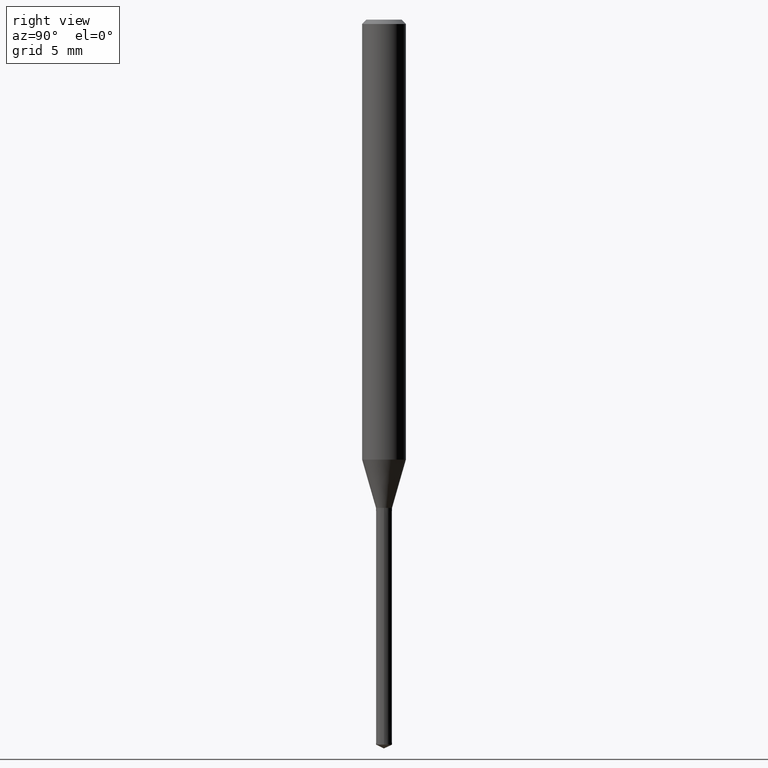
[diagram: clean part render]
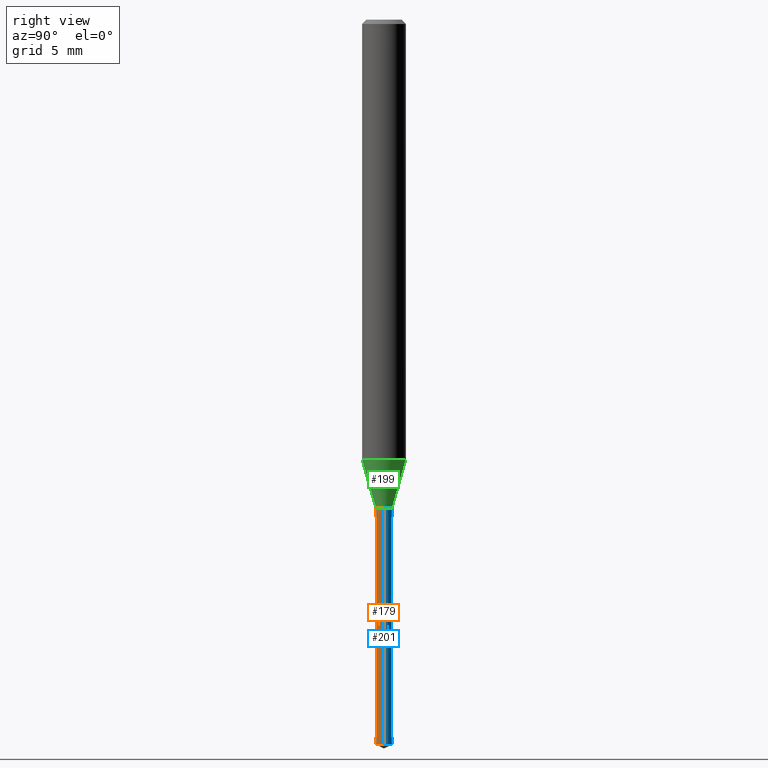
[diagram: same view with three faces highlighted in distinct colors, each labeled with its STEP entity id]
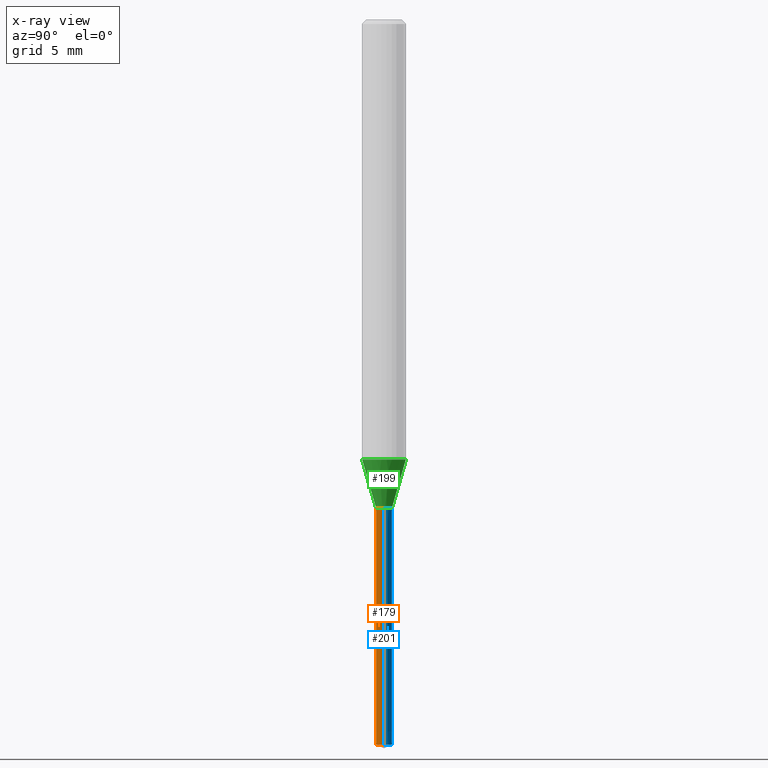
[diagram: x-ray of the same camera — body ghosted, the three highlighted faces saturated]
A machine part, right view with three faces highlighted in distinct colors.
The next image is the same camera in x-ray (body ghosted, the three faces saturated) — at least one of them is partly hidden behind the body in this view.
Their STEP definitions:

[orange] entity #179 — the highlighted conical surface has half-angle 0.004 deg.
#99=VERTEX_POINT('',#234);
#115=EDGE_CURVE('',#205,#131,#253,.T.);
#125=EDGE_CURVE('',#131,#139,#264,.T.);
#131=VERTEX_POINT('',#271);
#139=VERTEX_POINT('',#280);
#153=EDGE_CURVE('',#139,#99,#295,.T.);
#163=EDGE_CURVE('',#205,#99,#306,.T.);
#179=ADVANCED_FACE('',(#324),#325,.T.);
#205=VERTEX_POINT('',#355);
#234=CARTESIAN_POINT('',(-0.55,0.0,-49.74353079));
#253=LINE('',#402,#403);
#264=CIRCLE('',#416,0.551);
#271=CARTESIAN_POINT('',(0.551,6.7475810095613E-017,-33.5));
#280=CARTESIAN_POINT('',(-0.551,0.0,-33.5));
#295=LINE('',#454,#455);
#306=CIRCLE('',#470,0.55);
#324=FACE_OUTER_BOUND('',#491,.T.);
#325=CONICAL_SURFACE('',#492,0.5505,6.15629700010971E-005);
#355=CARTESIAN_POINT('',(0.55,6.73533494602308E-017,-49.74353079));
#402=CARTESIAN_POINT('',(0.5505,6.74145797779219E-017,-41.621765395));
#403=VECTOR('',#563,1.0);
#416=AXIS2_PLACEMENT_3D('',#574,#575,#576);
#454=CARTESIAN_POINT('',(-0.5505,-6.74145797779219E-017,-41.621765395));
#455=VECTOR('',#615,1.0);
#470=AXIS2_PLACEMENT_3D('',#628,#629,#630);
#491=EDGE_LOOP('',(#652,#653,#654,#655));
#492=AXIS2_PLACEMENT_3D('',#656,#657,#658);
#563=DIRECTION('',(6.15629699622099E-005,7.53904041758984E-021,0.999999998105));
#574=CARTESIAN_POINT('',(0.0,0.0,-33.5));
#575=DIRECTION('',(0.0,0.0,-1.0));
#576=DIRECTION('',(-1.0,0.0,0.0));
#615=DIRECTION('',(6.15629699622099E-005,7.53904041758984E-021,-0.999999998105));
#628=CARTESIAN_POINT('',(0.0,0.0,-49.74353079));
#629=DIRECTION('',(0.0,0.0,-1.0));
#630=DIRECTION('',(-1.0,0.0,0.0));
#652=ORIENTED_EDGE('',*,*,#153,.T.);
#653=ORIENTED_EDGE('',*,*,#163,.F.);
#654=ORIENTED_EDGE('',*,*,#115,.T.);
#655=ORIENTED_EDGE('',*,*,#125,.T.);
#656=CARTESIAN_POINT('',(0.0,0.0,-41.621765395));
#657=DIRECTION('',(-0.0,-0.0,1.0));
#658=DIRECTION('',(-1.0,0.0,0.0));

[blue] entity #201 — the highlighted conical surface has half-angle 0.004 deg.
#99=VERTEX_POINT('',#234);
#115=EDGE_CURVE('',#205,#131,#253,.T.);
#131=VERTEX_POINT('',#271);
#139=VERTEX_POINT('',#280);
#147=EDGE_CURVE('',#99,#205,#289,.T.);
#153=EDGE_CURVE('',#139,#99,#295,.T.);
#155=EDGE_CURVE('',#139,#131,#297,.T.);
#201=ADVANCED_FACE('',(#350),#351,.T.);
#205=VERTEX_POINT('',#355);
#234=CARTESIAN_POINT('',(-0.55,0.0,-49.74353079));
#253=LINE('',#402,#403);
#271=CARTESIAN_POINT('',(0.551,6.7475810095613E-017,-33.5));
#280=CARTESIAN_POINT('',(-0.551,0.0,-33.5));
#289=CIRCLE('',#445,0.55);
#295=LINE('',#454,#455);
#297=CIRCLE('',#458,0.551);
#350=FACE_OUTER_BOUND('',#527,.T.);
#351=CONICAL_SURFACE('',#528,0.5505,6.15629700010971E-005);
#355=CARTESIAN_POINT('',(0.55,6.73533494602308E-017,-49.74353079));
#402=CARTESIAN_POINT('',(0.5505,6.74145797779219E-017,-41.621765395));
#403=VECTOR('',#563,1.0);
#445=AXIS2_PLACEMENT_3D('',#606,#607,#608);
#454=CARTESIAN_POINT('',(-0.5505,-6.74145797779219E-017,-41.621765395));
#455=VECTOR('',#615,1.0);
#458=AXIS2_PLACEMENT_3D('',#616,#617,#618);
#527=EDGE_LOOP('',(#693,#694,#695,#696));
#528=AXIS2_PLACEMENT_3D('',#697,#698,#699);
#563=DIRECTION('',(6.15629699622099E-005,7.53904041758984E-021,0.999999998105));
#606=CARTESIAN_POINT('',(0.0,0.0,-49.74353079));
#607=DIRECTION('',(0.0,0.0,-1.0));
#608=DIRECTION('',(-1.0,0.0,0.0));
#615=DIRECTION('',(6.15629699622099E-005,7.53904041758984E-021,-0.999999998105));
#616=CARTESIAN_POINT('',(0.0,0.0,-33.5));
#617=DIRECTION('',(0.0,0.0,-1.0));
#618=DIRECTION('',(-1.0,0.0,0.0));
#693=ORIENTED_EDGE('',*,*,#153,.F.);
#694=ORIENTED_EDGE('',*,*,#155,.T.);
#695=ORIENTED_EDGE('',*,*,#115,.F.);
#696=ORIENTED_EDGE('',*,*,#147,.F.);
#697=CARTESIAN_POINT('',(0.0,0.0,-41.621765395));
#698=DIRECTION('',(-0.0,-0.0,1.0));
#699=DIRECTION('',(-1.0,0.0,0.0));

[green] entity #199 — the highlighted conical surface has half-angle 16.004 deg.
#91=VERTEX_POINT('',#226);
#95=VERTEX_POINT('',#230);
#105=EDGE_CURVE('',#121,#173,#241,.T.);
#121=VERTEX_POINT('',#260);
#137=EDGE_CURVE('',#95,#91,#278,.T.);
#173=VERTEX_POINT('',#317);
#183=EDGE_CURVE('',#91,#173,#330,.T.);
#187=EDGE_CURVE('',#121,#95,#334,.T.);
#199=ADVANCED_FACE('',(#347),#348,.T.);
#226=CARTESIAN_POINT('',(6.73533494602308E-017,-0.55,-33.4991339745962));
#230=CARTESIAN_POINT('',(0.0,0.55,-33.4991339745962));
#241=CIRCLE('',#385,1.5);
#260=CARTESIAN_POINT('',(0.0,1.5,-30.187));
#278=CIRCLE('',#434,0.55);
#317=CARTESIAN_POINT('',(1.83690953073357E-016,-1.5,-30.187));
#330=LINE('',#498,#499);
#334=LINE('',#506,#507);
#347=FACE_OUTER_BOUND('',#524,.T.);
#348=CONICAL_SURFACE('',#525,1.025,0.279325455519514);
#385=AXIS2_PLACEMENT_3D('',#544,#545,#546);
#434=AXIS2_PLACEMENT_3D('',#596,#597,#598);
#498=CARTESIAN_POINT('',(1.25522151266794E-016,-1.025,-31.8430669872981));
#499=VECTOR('',#666,1.0);
#506=CARTESIAN_POINT('',(-1.25522151266794E-016,1.025,-31.8430669872981));
#507=VECTOR('',#668,1.0);
#524=EDGE_LOOP('',(#685,#686,#687,#688));
#525=AXIS2_PLACEMENT_3D('',#689,#690,#691);
#544=CARTESIAN_POINT('',(0.0,0.0,-30.187));
#545=DIRECTION('',(0.0,0.0,-1.0));
#546=DIRECTION('',(0.0,1.0,0.0));
#596=CARTESIAN_POINT('',(0.0,0.0,-33.4991339745962));
#597=DIRECTION('',(0.0,0.0,-1.0));
#598=DIRECTION('',(0.0,1.0,0.0));
#666=DIRECTION('',(3.37632924967849E-017,-0.275707311099597,0.961241633828992));
#668=DIRECTION('',(3.37632924967849E-017,-0.275707311099597,-0.961241633828992));
#685=ORIENTED_EDGE('',*,*,#187,.F.);
#686=ORIENTED_EDGE('',*,*,#105,.T.);
#687=ORIENTED_EDGE('',*,*,#183,.F.);
#688=ORIENTED_EDGE('',*,*,#137,.F.);
#689=CARTESIAN_POINT('',(0.0,0.0,-31.8430669872981));
#690=DIRECTION('',(-0.0,-0.0,1.0));
#691=DIRECTION('',(0.0,1.0,0.0));